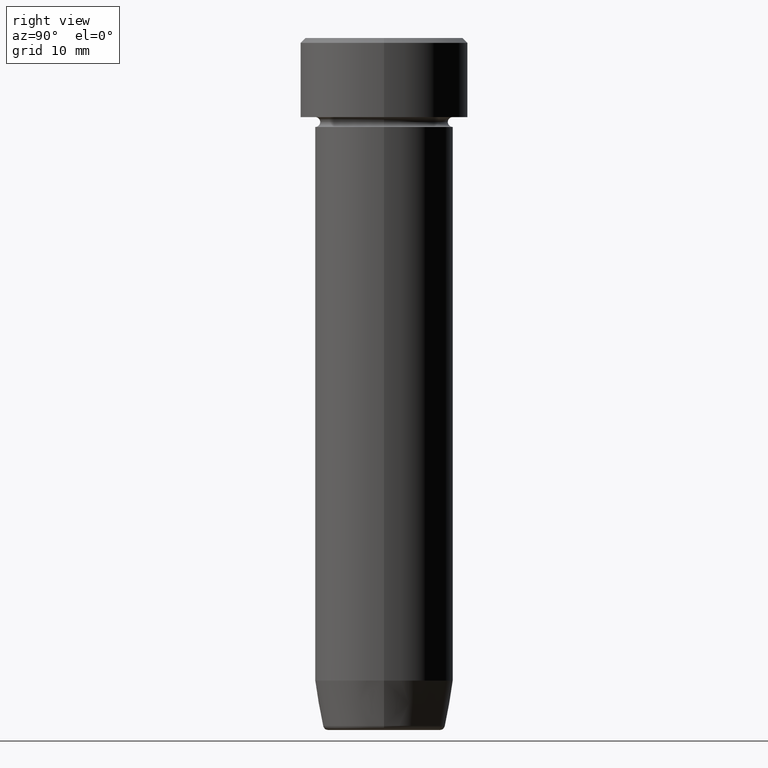
[diagram: clean part render]
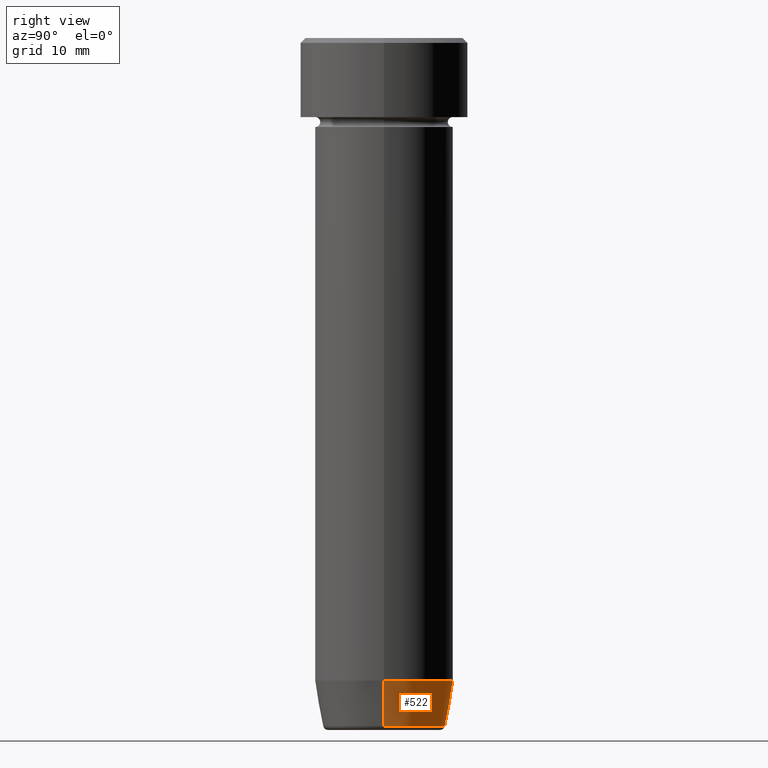
[diagram: same view with one face highlighted and labeled with its STEP entity id]
A machine part, right view. The second image highlights one B-rep face of the part: STEP entity #522.
In plain terms, the highlighted conical surface has half-angle 10 deg.
Its self-contained STEP definition (entity closure, byte-faithful):
#1 = AXIS2_PLACEMENT_3D ( 'NONE', #133, #444, #6 ) ;
#6 = DIRECTION ( 'NONE',  ( -1.000000000000000000, 0.000000000000000000, 0.000000000000000000 ) ) ;
#13 = CARTESIAN_POINT ( 'NONE',  ( 6.118365096457672792, 0.000000000000000000, -70.00000000000000000 ) ) ;
#15 = CARTESIAN_POINT ( 'NONE',  ( -6.999999999999999112, 8.572527594031472204E-16, -65.00000000000000000 ) ) ;
#23 = VERTEX_POINT ( 'NONE', #276 ) ;
#28 = DIRECTION ( 'NONE',  ( -0.000000000000000000, -0.000000000000000000, 1.000000000000000000 ) ) ;
#29 = EDGE_CURVE ( 'NONE', #23, #433, #273, .T. ) ;
#33 = EDGE_LOOP ( 'NONE', ( #586, #214, #388, #393 ) ) ;
#50 = DIRECTION ( 'NONE',  ( -0.1736481776669304145, 2.126576849575772531E-17, 0.9848077530122080203 ) ) ;
#82 = AXIS2_PLACEMENT_3D ( 'NONE', #101, #509, #386 ) ;
#101 = CARTESIAN_POINT ( 'NONE',  ( 0.000000000000000000, 0.000000000000000000, -70.00000000000000000 ) ) ;
#133 = CARTESIAN_POINT ( 'NONE',  ( 0.000000000000000000, 0.000000000000000000, -69.58682408883346682 ) ) ;
#134 = DIRECTION ( 'NONE',  ( 0.1736481776669304145, 0.000000000000000000, 0.9848077530122080203 ) ) ;
#137 = CIRCLE ( 'NONE', #217, 6.999999999999999112 ) ;
#168 = EDGE_CURVE ( 'NONE', #433, #475, #191, .T. ) ;
#189 = CARTESIAN_POINT ( 'NONE',  ( 6.999999999999999112, 0.000000000000000000, -65.00000000000000000 ) ) ;
#191 = LINE ( 'NONE', #295, #235 ) ;
#212 = CARTESIAN_POINT ( 'NONE',  ( -6.191219157375138948, 8.077292158965355434E-16, -69.58682408883346682 ) ) ;
#214 = ORIENTED_EDGE ( 'NONE', *, *, #168, .T. ) ;
#217 = AXIS2_PLACEMENT_3D ( 'NONE', #387, #28, #479 ) ;
#235 = VECTOR ( 'NONE', #50, 1000.000000000000227 ) ;
#273 = CIRCLE ( 'NONE', #1, 6.191219157375138948 ) ;
#276 = CARTESIAN_POINT ( 'NONE',  ( 6.191219157375138948, 0.000000000000000000, -69.58682408883346682 ) ) ;
#277 = EDGE_CURVE ( 'NONE', #526, #475, #137, .T. ) ;
#285 = FACE_OUTER_BOUND ( 'NONE', #33, .T. ) ;
#295 = CARTESIAN_POINT ( 'NONE',  ( -6.118365096457672792, 7.492836231391776623E-16, -70.00000000000000000 ) ) ;
#343 = LINE ( 'NONE', #13, #452 ) ;
#386 = DIRECTION ( 'NONE',  ( 1.000000000000000000, 0.000000000000000000, 0.000000000000000000 ) ) ;
#387 = CARTESIAN_POINT ( 'NONE',  ( 0.000000000000000000, 0.000000000000000000, -65.00000000000000000 ) ) ;
#388 = ORIENTED_EDGE ( 'NONE', *, *, #277, .F. ) ;
#393 = ORIENTED_EDGE ( 'NONE', *, *, #463, .F. ) ;
#397 = CONICAL_SURFACE ( 'NONE', #82, 6.118365096457672792, 0.1745329251994330311 ) ;
#433 = VERTEX_POINT ( 'NONE', #212 ) ;
#444 = DIRECTION ( 'NONE',  ( -0.000000000000000000, -0.000000000000000000, 1.000000000000000000 ) ) ;
#452 = VECTOR ( 'NONE', #134, 1000.000000000000227 ) ;
#463 = EDGE_CURVE ( 'NONE', #23, #526, #343, .T. ) ;
#475 = VERTEX_POINT ( 'NONE', #15 ) ;
#479 = DIRECTION ( 'NONE',  ( 1.000000000000000000, 0.000000000000000000, 0.000000000000000000 ) ) ;
#509 = DIRECTION ( 'NONE',  ( -0.000000000000000000, -0.000000000000000000, 1.000000000000000000 ) ) ;
#522 = ADVANCED_FACE ( 'NONE', ( #285 ), #397, .T. ) ;
#526 = VERTEX_POINT ( 'NONE', #189 ) ;
#586 = ORIENTED_EDGE ( 'NONE', *, *, #29, .T. ) ;